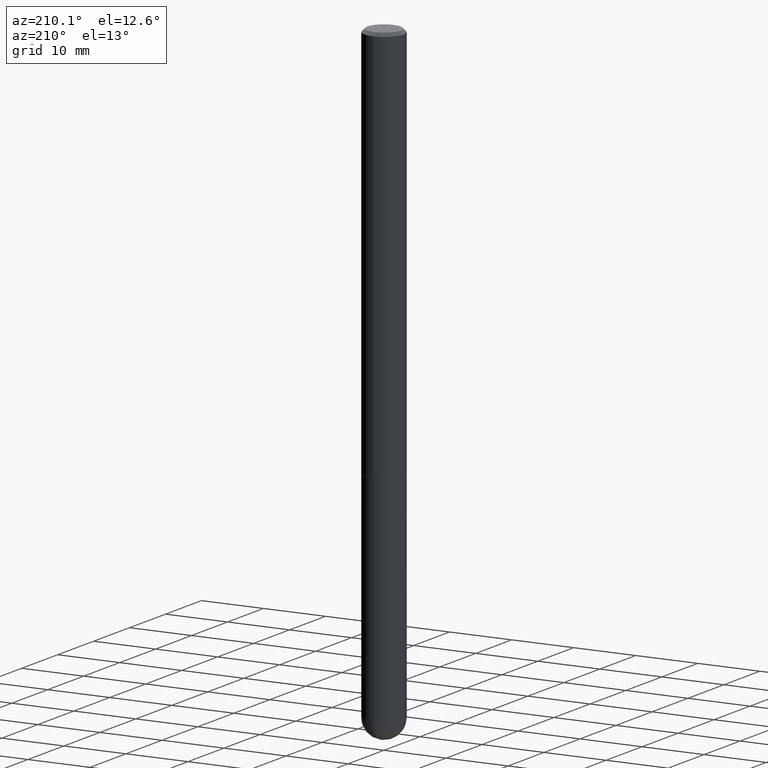
[diagram: clean part render]
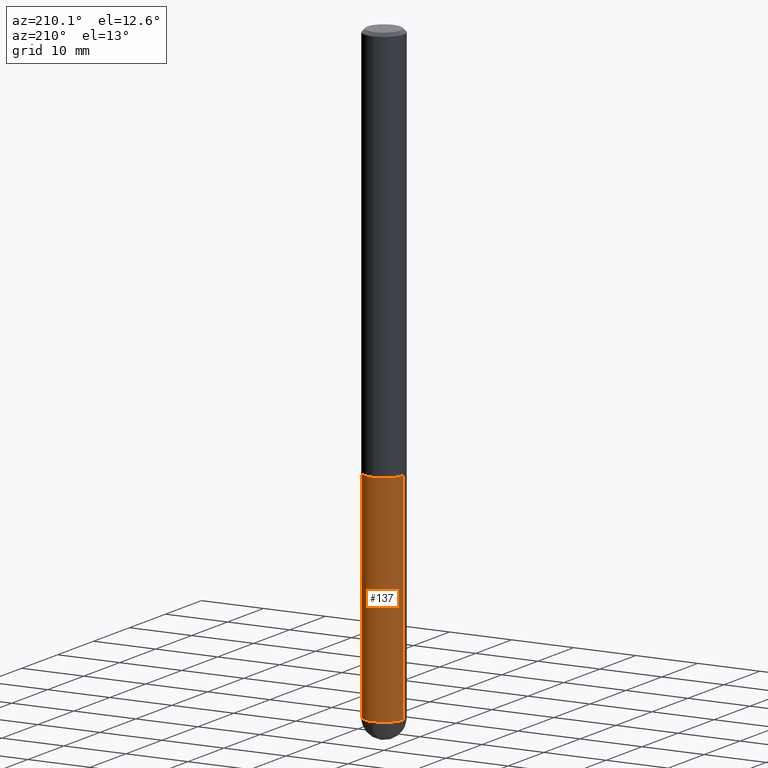
[diagram: same view with one face highlighted and labeled with its STEP entity id]
A machine part, auxiliary view. The second image highlights one B-rep face of the part: STEP entity #137.
In plain terms, the highlighted cylindrical surface (edge-blend (fillet) strip) has radius 3.175 mm, axis along (-0, 0, 1).
Its self-contained STEP definition (entity closure, byte-faithful):
#3 = EDGE_CURVE ( 'NONE', #216, #81, #60, .T. ) ;
#8 = CARTESIAN_POINT ( 'NONE',  ( 9.476191623967404313E-29, -1.352949018801718908E-14, -3.875000000000000000 ) ) ;
#13 = CARTESIAN_POINT ( 'NONE',  ( -0.1250000000000000000, -1.024091834786240099E-14, -2.500000000000000000 ) ) ;
#14 = AXIS2_PLACEMENT_3D ( 'NONE', #343, #73, #402 ) ;
#28 = EDGE_CURVE ( 'NONE', #87, #148, #187, .T. ) ;
#33 = VECTOR ( 'NONE', #315, 39.37007874015748143 ) ;
#40 = CIRCLE ( 'NONE', #91, 0.1250000000000000278 ) ;
#55 = ORIENTED_EDGE ( 'NONE', *, *, #28, .F. ) ;
#57 = CIRCLE ( 'NONE', #14, 0.1250000000000000000 ) ;
#60 = LINE ( 'NONE', #317, #33 ) ;
#68 = CYLINDRICAL_SURFACE ( 'NONE', #176, 0.1250000000000000000 ) ;
#71 = FACE_OUTER_BOUND ( 'NONE', #209, .T. ) ;
#73 = DIRECTION ( 'NONE',  ( -2.445468806185136597E-29, 3.491481338843145583E-15, 1.000000000000000000 ) ) ;
#81 = VERTEX_POINT ( 'NONE', #13 ) ;
#87 = VERTEX_POINT ( 'NONE', #167 ) ;
#91 = AXIS2_PLACEMENT_3D ( 'NONE', #397, #362, #369 ) ;
#102 = CIRCLE ( 'NONE', #389, 0.1250000000000000278 ) ;
#105 = DIRECTION ( 'NONE',  ( 1.000000000000000000, -6.982962677686261189E-15, 0.000000000000000000 ) ) ;
#129 = EDGE_CURVE ( 'NONE', #383, #216, #102, .T. ) ;
#130 = DIRECTION ( 'NONE',  ( -2.445468806185136597E-29, 3.491481338843145583E-15, 1.000000000000000000 ) ) ;
#137 = ADVANCED_FACE ( 'NONE', ( #71 ), #68, .T. ) ;
#148 = VERTEX_POINT ( 'NONE', #165 ) ;
#149 = DIRECTION ( 'NONE',  ( -2.445468806185136877E-29, 3.491481338843145188E-15, 1.000000000000000000 ) ) ;
#165 = CARTESIAN_POINT ( 'NONE',  ( 0.1250000000000000000, -9.601573681818648281E-15, -2.500000000000000000 ) ) ;
#167 = CARTESIAN_POINT ( 'NONE',  ( 0.1250000000000000278, -1.200196710227331272E-14, -3.875000000000000000 ) ) ;
#172 = EDGE_CURVE ( 'NONE', #87, #383, #40, .T. ) ;
#176 = AXIS2_PLACEMENT_3D ( 'NONE', #331, #390, #326 ) ;
#187 = LINE ( 'NONE', #251, #365 ) ;
#189 = CARTESIAN_POINT ( 'NONE',  ( 8.728703347108771147E-16, 0.1249999999999863443, -3.875000000000000444 ) ) ;
#190 = ORIENTED_EDGE ( 'NONE', *, *, #408, .F. ) ;
#208 = CARTESIAN_POINT ( 'NONE',  ( -0.1250000000000000278, -1.024091834786240415E-14, -3.875000000000000000 ) ) ;
#209 = EDGE_LOOP ( 'NONE', ( #345, #381, #190, #55, #242 ) ) ;
#216 = VERTEX_POINT ( 'NONE', #208 ) ;
#242 = ORIENTED_EDGE ( 'NONE', *, *, #172, .T. ) ;
#251 = CARTESIAN_POINT ( 'NONE',  ( 0.1250000000000000000, -8.728703347107833388E-16, 6.095220969744919741E-30 ) ) ;
#315 = DIRECTION ( 'NONE',  ( -2.445468806185136877E-29, 3.491481338843145188E-15, 1.000000000000000000 ) ) ;
#317 = CARTESIAN_POINT ( 'NONE',  ( -0.1250000000000000000, 8.881784197001252323E-16, -6.148668862818632227E-30 ) ) ;
#326 = DIRECTION ( 'NONE',  ( 1.000000000000000000, -6.982962677686266711E-15, 4.876176775795935793E-29 ) ) ;
#331 = CARTESIAN_POINT ( 'NONE',  ( 0.000000000000000000, 0.000000000000000000, 0.000000000000000000 ) ) ;
#343 = CARTESIAN_POINT ( 'NONE',  ( 6.113672015462842613E-29, -8.728703347107864943E-15, -2.500000000000000000 ) ) ;
#345 = ORIENTED_EDGE ( 'NONE', *, *, #129, .T. ) ;
#362 = DIRECTION ( 'NONE',  ( -2.445468806185136597E-29, 3.491481338843145583E-15, 1.000000000000000000 ) ) ;
#365 = VECTOR ( 'NONE', #149, 39.37007874015748143 ) ;
#369 = DIRECTION ( 'NONE',  ( 1.000000000000000000, -6.982962677686261189E-15, 0.000000000000000000 ) ) ;
#381 = ORIENTED_EDGE ( 'NONE', *, *, #3, .T. ) ;
#383 = VERTEX_POINT ( 'NONE', #189 ) ;
#389 = AXIS2_PLACEMENT_3D ( 'NONE', #8, #130, #105 ) ;
#390 = DIRECTION ( 'NONE',  ( -2.445468806185136597E-29, 3.491481338843145583E-15, 1.000000000000000000 ) ) ;
#397 = CARTESIAN_POINT ( 'NONE',  ( 9.476191623967404313E-29, -1.352949018801718908E-14, -3.875000000000000000 ) ) ;
#402 = DIRECTION ( 'NONE',  ( 1.000000000000000000, -6.982962677686270655E-15, 0.000000000000000000 ) ) ;
#408 = EDGE_CURVE ( 'NONE', #148, #81, #57, .T. ) ;